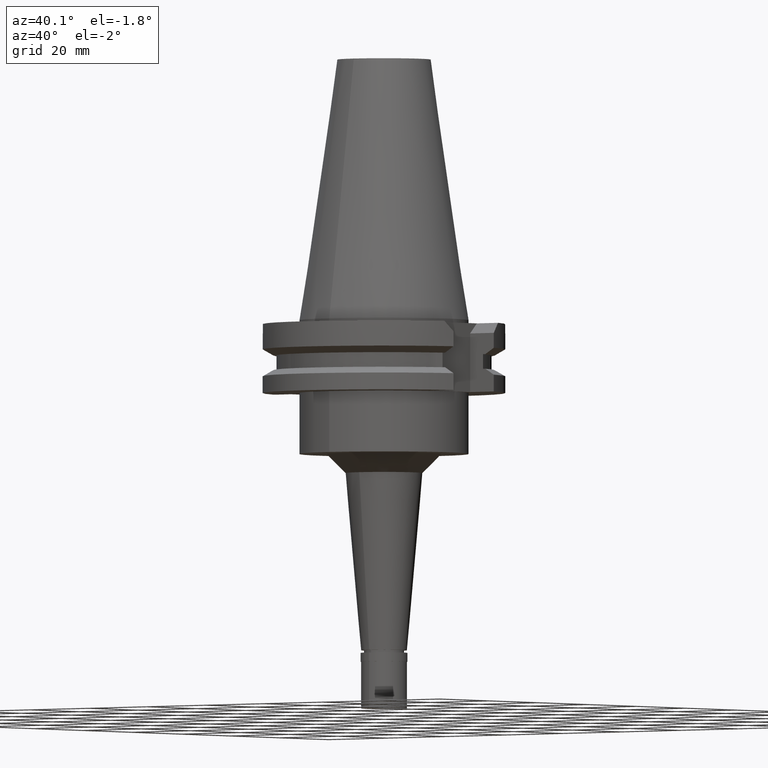
[diagram: clean part render]
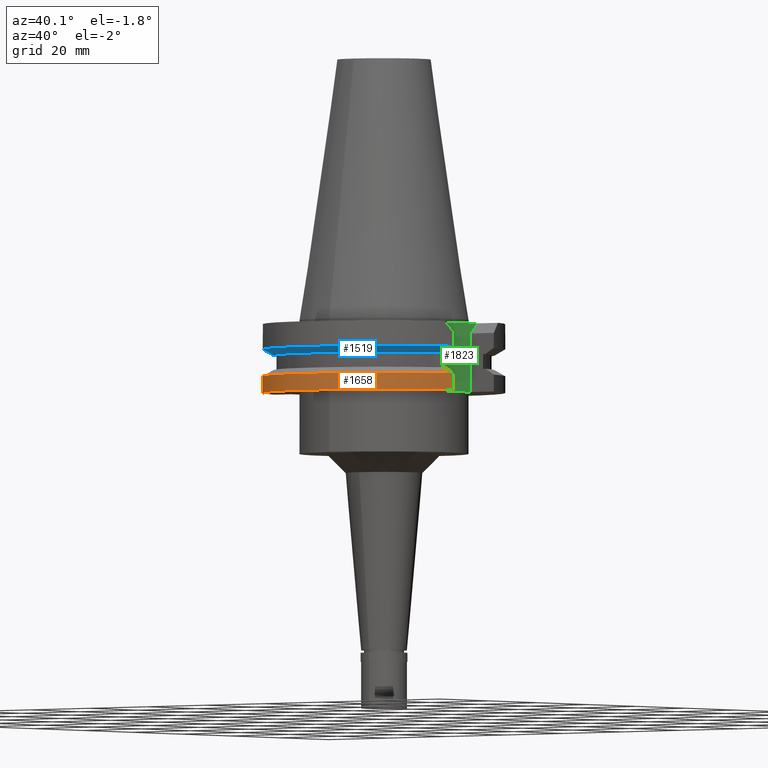
[diagram: same view with three faces highlighted in distinct colors, each labeled with its STEP entity id]
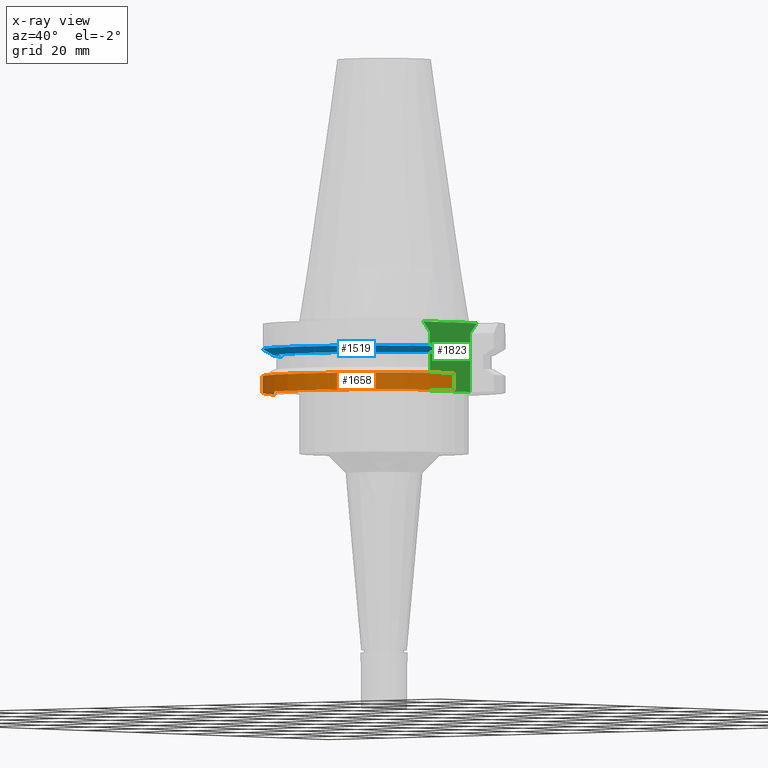
[diagram: x-ray of the same camera — body ghosted, the three highlighted faces saturated]
A machine part, auxiliary view with three faces highlighted in distinct colors.
The next image is the same camera in x-ray (body ghosted, the three faces saturated) — at least one of them is partly hidden behind the body in this view.
Their STEP definitions:

[orange] entity #1658 — the highlighted cylindrical surface (partial cylindrical patch) has radius 31.75 mm, axis along (0, 0, -1).
#147 = VERTEX_POINT ( 'NONE', #1989 ) ;
#310 = ORIENTED_EDGE ( 'NONE', *, *, #1418, .F. ) ;
#332 = ORIENTED_EDGE ( 'NONE', *, *, #2501, .T. ) ;
#372 = CYLINDRICAL_SURFACE ( 'NONE', #2079, 31.75000000000000000 ) ;
#423 = CARTESIAN_POINT ( 'NONE',  ( -30.67550162588999640, -8.189999999999999503, -19.05000000000000071 ) ) ;
#531 = DIRECTION ( 'NONE',  ( 0.0000000000000000000, -1.000000000000000000, 0.0000000000000000000 ) ) ;
#609 = CARTESIAN_POINT ( 'NONE',  ( 30.67550146397999811, -8.190000606433999408, -14.65367218827999984 ) ) ;
#639 = EDGE_LOOP ( 'NONE', ( #3174, #310, #332, #711 ) ) ;
#711 = ORIENTED_EDGE ( 'NONE', *, *, #2396, .F. ) ;
#793 = LINE ( 'NONE', #1298, #3110 ) ;
#841 = EDGE_CURVE ( 'NONE', #1041, #147, #963, .T. ) ;
#908 = CARTESIAN_POINT ( 'NONE',  ( 0.0000000000000000000, 2.162022075384999775E-14, 76.54250000000000398 ) ) ;
#963 = CIRCLE ( 'NONE', #1222, 31.74999999999998579 ) ;
#966 = AXIS2_PLACEMENT_3D ( 'NONE', #2734, #1334, #531 ) ;
#1041 = VERTEX_POINT ( 'NONE', #609 ) ;
#1044 = DIRECTION ( 'NONE',  ( -7.635617661252995887E-09, 2.859850544691998856E-08, 0.9999999999999995559 ) ) ;
#1084 = VERTEX_POINT ( 'NONE', #2715 ) ;
#1222 = AXIS2_PLACEMENT_3D ( 'NONE', #2035, #2256, #2015 ) ;
#1298 = CARTESIAN_POINT ( 'NONE',  ( -30.67550162588999640, -8.189999999999999503, -19.05000000000000071 ) ) ;
#1334 = DIRECTION ( 'NONE',  ( 0.0000000000000000000, 0.0000000000000000000, 1.000000000000000000 ) ) ;
#1418 = EDGE_CURVE ( 'NONE', #2699, #147, #793, .T. ) ;
#1427 = DIRECTION ( 'NONE',  ( 0.0000000000000000000, 0.0000000000000000000, -1.000000000000000000 ) ) ;
#1658 = ADVANCED_FACE ( 'NONE', ( #3091 ), #372, .T. ) ;
#1924 = DIRECTION ( 'NONE',  ( 3.682847641827927238E-08, 1.379409667692972264E-07, -0.9999999999999898970 ) ) ;
#1972 = CARTESIAN_POINT ( 'NONE',  ( 30.67550146397999811, -8.190000606433999408, -14.65367218827999984 ) ) ;
#1989 = CARTESIAN_POINT ( 'NONE',  ( -30.67550165945999652, -8.189999874271000735, -14.65366564556000029 ) ) ;
#2015 = DIRECTION ( 'NONE',  ( 0.9661575315241073270, -0.2579527559055020958, 0.0000000000000000000 ) ) ;
#2035 = CARTESIAN_POINT ( 'NONE',  ( 0.0000000000000000000, 1.055026073064999954E-14, -14.65366676908000088 ) ) ;
#2036 = VECTOR ( 'NONE', #1924, 999.9999999999998863 ) ;
#2079 = AXIS2_PLACEMENT_3D ( 'NONE', #908, #1427, #2643 ) ;
#2170 = LINE ( 'NONE', #1972, #2036 ) ;
#2256 = DIRECTION ( 'NONE',  ( 0.0000000000000000000, 0.0000000000000000000, -1.000000000000000000 ) ) ;
#2396 = EDGE_CURVE ( 'NONE', #1041, #1084, #2170, .T. ) ;
#2501 = EDGE_CURVE ( 'NONE', #2699, #1084, #3066, .T. ) ;
#2643 = DIRECTION ( 'NONE',  ( 0.0000000000000000000, -1.000000000000000000, 0.0000000000000000000 ) ) ;
#2699 = VERTEX_POINT ( 'NONE', #423 ) ;
#2715 = CARTESIAN_POINT ( 'NONE',  ( 30.67550162588999640, -8.189999999999999503, -19.05000000000000071 ) ) ;
#2734 = CARTESIAN_POINT ( 'NONE',  ( 0.0000000000000000000, 2.162022075384999775E-14, -19.05000000000000071 ) ) ;
#3066 = CIRCLE ( 'NONE', #966, 31.75000000000000000 ) ;
#3091 = FACE_OUTER_BOUND ( 'NONE', #639, .T. ) ;
#3110 = VECTOR ( 'NONE', #1044, 1000.000000000000000 ) ;
#3174 = ORIENTED_EDGE ( 'NONE', *, *, #841, .T. ) ;

[blue] entity #1519 — the highlighted conical surface has half-angle 60 deg.
#60 = AXIS2_PLACEMENT_3D ( 'NONE', #2870, #681, #2074 ) ;
#68 = DIRECTION ( 'NONE',  ( 0.0000000000000000000, 0.0000000000000000000, 1.000000000000000000 ) ) ;
#71 = CARTESIAN_POINT ( 'NONE',  ( 0.0000000000000000000, 1.121722380078999823E-14, -9.207500000002999840 ) ) ;
#85 = CARTESIAN_POINT ( 'NONE',  ( 30.67550146398999900, -8.190000606402000116, -7.601327811763000319 ) ) ;
#197 = CARTESIAN_POINT ( 'NONE',  ( -28.70626004178418000, -8.189998719144561790, -8.697957593757534411 ) ) ;
#199 = CARTESIAN_POINT ( 'NONE',  ( 30.67550146398999900, -8.190000606402000116, -7.601327811763000319 ) ) ;
#304 = CARTESIAN_POINT ( 'NONE',  ( -30.67550165945999652, -8.189999874275001090, -7.601334354452000674 ) ) ;
#309 = DIRECTION ( 'NONE',  ( -0.9592008904639479638, -0.2827253998726845241, 0.0000000000000000000 ) ) ;
#321 = FACE_OUTER_BOUND ( 'NONE', #1329, .T. ) ;
#367 = EDGE_CURVE ( 'NONE', #2482, #2621, #3162, .T. ) ;
#370 = EDGE_CURVE ( 'NONE', #2621, #471, #2103, .T. ) ;
#409 = ORIENTED_EDGE ( 'NONE', *, *, #367, .T. ) ;
#471 = VERTEX_POINT ( 'NONE', #199 ) ;
#681 = DIRECTION ( 'NONE',  ( 0.0000000000000000000, 0.0000000000000000000, 1.000000000000000000 ) ) ;
#775 = CARTESIAN_POINT ( 'NONE',  ( -27.78617704611000150, -8.189999360279001550, -9.207500000000999663 ) ) ;
#785 = ORIENTED_EDGE ( 'NONE', *, *, #2340, .T. ) ;
#863 = CARTESIAN_POINT ( 'NONE',  ( 27.78616453841999956, -8.190000190925999846, -9.207500000000999663 ) ) ;
#986 = CARTESIAN_POINT ( 'NONE',  ( -27.78617704611000150, -8.189999360279001550, -9.207500000000999663 ) ) ;
#1080 = DIRECTION ( 'NONE',  ( 0.0000000000000000000, 0.0000000000000000000, 1.000000000000000000 ) ) ;
#1329 = EDGE_LOOP ( 'NONE', ( #1506, #2109, #785, #409 ) ) ;
#1492 = CARTESIAN_POINT ( 'NONE',  ( -30.67550165945999652, -8.189999874275001090, -7.601334354452000674 ) ) ;
#1506 = ORIENTED_EDGE ( 'NONE', *, *, #370, .T. ) ;
#1508 = VERTEX_POINT ( 'NONE', #304 ) ;
#1519 = ADVANCED_FACE ( 'NONE', ( #321 ), #2188, .T. ) ;
#1755 = EDGE_CURVE ( 'NONE', #1508, #471, #3000, .T. ) ;
#1780 = AXIS2_PLACEMENT_3D ( 'NONE', #71, #1080, #309 ) ;
#2028 = AXIS2_PLACEMENT_3D ( 'NONE', #2509, #68, #2772 ) ;
#2049 = CARTESIAN_POINT ( 'NONE',  ( 28.70625673645007936, -8.190000382286788394, -8.697959175222219841 ) ) ;
#2074 = DIRECTION ( 'NONE',  ( -0.9661575315241073270, -0.2579527559055020958, 0.0000000000000000000 ) ) ;
#2103 = B_SPLINE_CURVE_WITH_KNOTS ( 'NONE', 3,
 ( #2311, #2049, #3065, #85 ),
 .UNSPECIFIED., .F., .F.,
 ( 4, 4 ),
 ( 0.0000000000000000000, 1.000000000000000000 ),
 .UNSPECIFIED. ) ;
#2109 = ORIENTED_EDGE ( 'NONE', *, *, #1755, .F. ) ;
#2188 = CONICAL_SURFACE ( 'NONE', #2028, 30.35901877526999826, 1.047197551196400456 ) ;
#2221 = CARTESIAN_POINT ( 'NONE',  ( -29.66936067476192562, -8.189999748643545630, -8.162570071880903555 ) ) ;
#2272 = B_SPLINE_CURVE_WITH_KNOTS ( 'NONE', 3,
 ( #1492, #2221, #197, #986 ),
 .UNSPECIFIED., .F., .F.,
 ( 4, 4 ),
 ( 0.0000000000000000000, 1.000000000000000000 ),
 .UNSPECIFIED. ) ;
#2311 = CARTESIAN_POINT ( 'NONE',  ( 27.78616453841999956, -8.190000190925999846, -9.207500000000999663 ) ) ;
#2340 = EDGE_CURVE ( 'NONE', #1508, #2482, #2272, .T. ) ;
#2482 = VERTEX_POINT ( 'NONE', #775 ) ;
#2509 = CARTESIAN_POINT ( 'NONE',  ( 0.0000000000000000000, 1.121722380078999823E-14, -8.404416615464000984 ) ) ;
#2621 = VERTEX_POINT ( 'NONE', #863 ) ;
#2772 = DIRECTION ( 'NONE',  ( 0.0000000000000000000, 1.000000000000000000, 0.0000000000000000000 ) ) ;
#2870 = CARTESIAN_POINT ( 'NONE',  ( 0.0000000000000000000, 1.121722380078999823E-14, -7.601333230925999551 ) ) ;
#3000 = CIRCLE ( 'NONE', #60, 31.74999999999998579 ) ;
#3065 = CARTESIAN_POINT ( 'NONE',  ( 29.66936146350282399, -8.190001212368189343, -8.162569410344822529 ) ) ;
#3162 = CIRCLE ( 'NONE', #1780, 28.96803755052999918 ) ;

[green] entity #1823 — the highlighted planar face has unit normal (1, 0, 0).
#33 = CARTESIAN_POINT ( 'NONE',  ( 22.57000000000000028, 10.89000000000000057, -1.000000000000000000 ) ) ;
#55 = CARTESIAN_POINT ( 'NONE',  ( 22.57000000000000028, -10.89000000000000057, -1.000000000000000000 ) ) ;
#156 = ORIENTED_EDGE ( 'NONE', *, *, #1758, .F. ) ;
#242 = LINE ( 'NONE', #2452, #2840 ) ;
#273 = ORIENTED_EDGE ( 'NONE', *, *, #1342, .F. ) ;
#331 = VERTEX_POINT ( 'NONE', #1968 ) ;
#439 = VECTOR ( 'NONE', #636, 1000.000000000000114 ) ;
#514 = EDGE_LOOP ( 'NONE', ( #2544, #2305, #2792, #273, #156, #926 ) ) ;
#636 = DIRECTION ( 'NONE',  ( 0.0000000000000000000, -0.7071067811865474617, -0.7071067811865474617 ) ) ;
#670 = LINE ( 'NONE', #1651, #2756 ) ;
#742 = LINE ( 'NONE', #934, #2710 ) ;
#749 = AXIS2_PLACEMENT_3D ( 'NONE', #1730, #1931, #2174 ) ;
#926 = ORIENTED_EDGE ( 'NONE', *, *, #2304, .F. ) ;
#934 = CARTESIAN_POINT ( 'NONE',  ( 22.57000000000000028, 8.189999999999999503, -19.05000000000000071 ) ) ;
#1010 = VERTEX_POINT ( 'NONE', #1079 ) ;
#1079 = CARTESIAN_POINT ( 'NONE',  ( 22.57000000000000028, -8.189999999999999503, -19.05000000000000071 ) ) ;
#1207 = VERTEX_POINT ( 'NONE', #55 ) ;
#1326 = VERTEX_POINT ( 'NONE', #2973 ) ;
#1342 = EDGE_CURVE ( 'NONE', #331, #1207, #1769, .T. ) ;
#1364 = VERTEX_POINT ( 'NONE', #33 ) ;
#1472 = CARTESIAN_POINT ( 'NONE',  ( 22.57000000000000028, -8.189999999999999503, -3.700000000000000178 ) ) ;
#1505 = LINE ( 'NONE', #2344, #2508 ) ;
#1651 = CARTESIAN_POINT ( 'NONE',  ( 22.57000000000000028, 10.89000000000000057, -1.000000000000000000 ) ) ;
#1652 = EDGE_CURVE ( 'NONE', #1364, #2024, #2108, .T. ) ;
#1685 = DIRECTION ( 'NONE',  ( 0.0000000000000000000, 0.0000000000000000000, 1.000000000000000000 ) ) ;
#1730 = CARTESIAN_POINT ( 'NONE',  ( 22.57000000000000028, 0.0000000000000000000, 0.0000000000000000000 ) ) ;
#1758 = EDGE_CURVE ( 'NONE', #1010, #331, #242, .T. ) ;
#1769 = LINE ( 'NONE', #1472, #2289 ) ;
#1823 = ADVANCED_FACE ( 'NONE', ( #2886 ), #2420, .T. ) ;
#1931 = DIRECTION ( 'NONE',  ( 1.000000000000000000, 0.0000000000000000000, 0.0000000000000000000 ) ) ;
#1958 = DIRECTION ( 'NONE',  ( 0.0000000000000000000, -1.000000000000000000, 0.0000000000000000000 ) ) ;
#1968 = CARTESIAN_POINT ( 'NONE',  ( 22.57000000000000028, -8.189999999999999503, -3.700000000000000178 ) ) ;
#2024 = VERTEX_POINT ( 'NONE', #2503 ) ;
#2108 = LINE ( 'NONE', #2127, #439 ) ;
#2127 = CARTESIAN_POINT ( 'NONE',  ( 22.57000000000000028, 10.89000000000000057, -1.000000000000000000 ) ) ;
#2174 = DIRECTION ( 'NONE',  ( 0.0000000000000000000, 1.000000000000000000, 0.0000000000000000000 ) ) ;
#2289 = VECTOR ( 'NONE', #2445, 1000.000000000000114 ) ;
#2304 = EDGE_CURVE ( 'NONE', #1326, #1010, #742, .T. ) ;
#2305 = ORIENTED_EDGE ( 'NONE', *, *, #1652, .F. ) ;
#2344 = CARTESIAN_POINT ( 'NONE',  ( 22.57000000000000028, 8.189999999999999503, -3.700000000000000178 ) ) ;
#2420 = PLANE ( 'NONE',  #749 ) ;
#2445 = DIRECTION ( 'NONE',  ( 0.0000000000000000000, -0.7071067811865474617, 0.7071067811865474617 ) ) ;
#2452 = CARTESIAN_POINT ( 'NONE',  ( 22.57000000000000028, -8.189999999999999503, -19.05000000000000071 ) ) ;
#2496 = DIRECTION ( 'NONE',  ( 0.0000000000000000000, 0.0000000000000000000, -1.000000000000000000 ) ) ;
#2503 = CARTESIAN_POINT ( 'NONE',  ( 22.57000000000000028, 8.189999999999999503, -3.700000000000000178 ) ) ;
#2508 = VECTOR ( 'NONE', #2496, 1000.000000000000000 ) ;
#2523 = EDGE_CURVE ( 'NONE', #2024, #1326, #1505, .T. ) ;
#2544 = ORIENTED_EDGE ( 'NONE', *, *, #2523, .F. ) ;
#2710 = VECTOR ( 'NONE', #1958, 1000.000000000000000 ) ;
#2753 = EDGE_CURVE ( 'NONE', #1364, #1207, #670, .T. ) ;
#2756 = VECTOR ( 'NONE', #3082, 1000.000000000000000 ) ;
#2792 = ORIENTED_EDGE ( 'NONE', *, *, #2753, .T. ) ;
#2840 = VECTOR ( 'NONE', #1685, 1000.000000000000000 ) ;
#2886 = FACE_OUTER_BOUND ( 'NONE', #514, .T. ) ;
#2973 = CARTESIAN_POINT ( 'NONE',  ( 22.57000000000000028, 8.189999999999999503, -19.05000000000000071 ) ) ;
#3082 = DIRECTION ( 'NONE',  ( 0.0000000000000000000, -1.000000000000000000, 0.0000000000000000000 ) ) ;